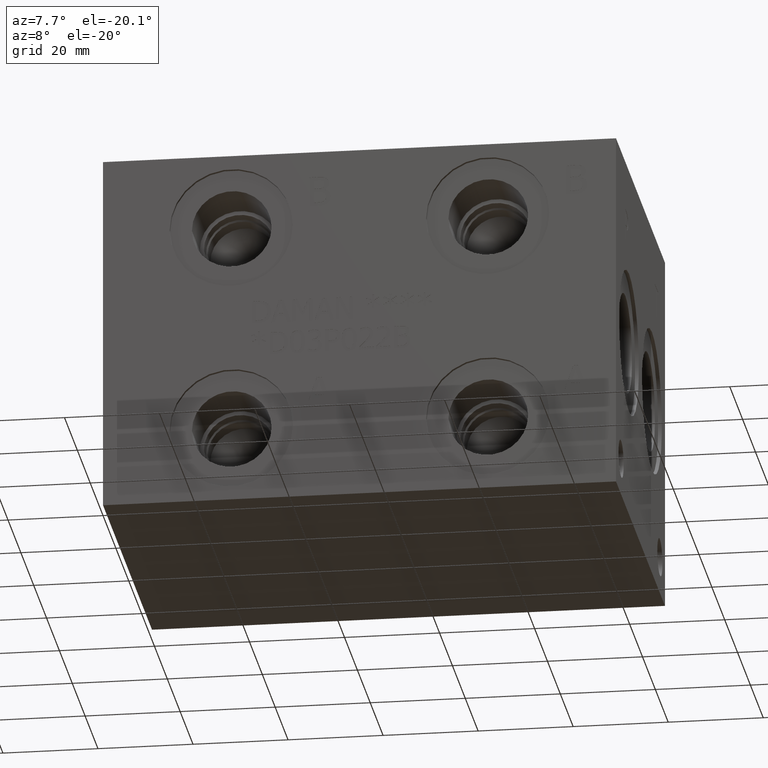
[diagram: clean part render]
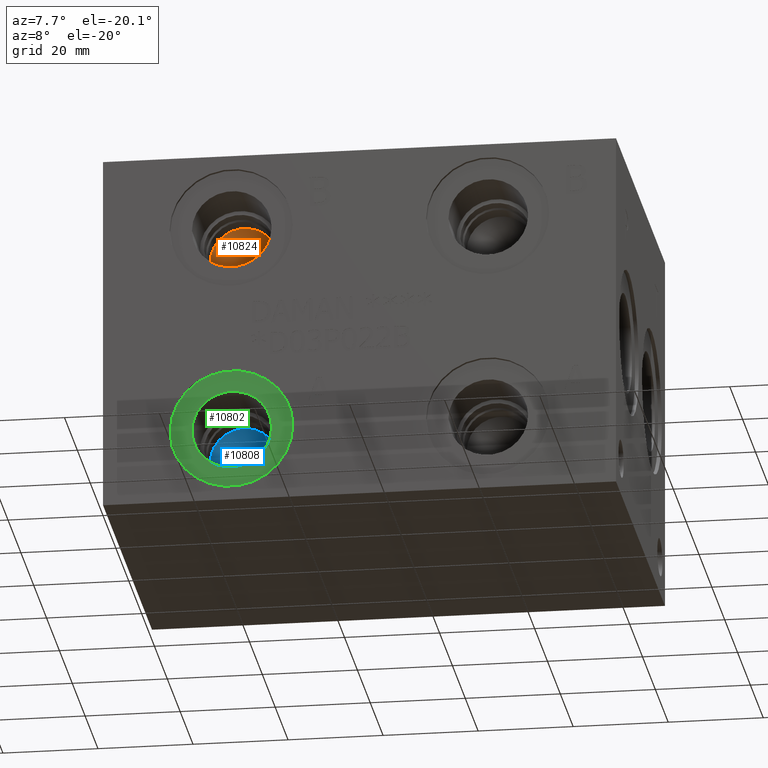
[diagram: same view with three faces highlighted in distinct colors, each labeled with its STEP entity id]
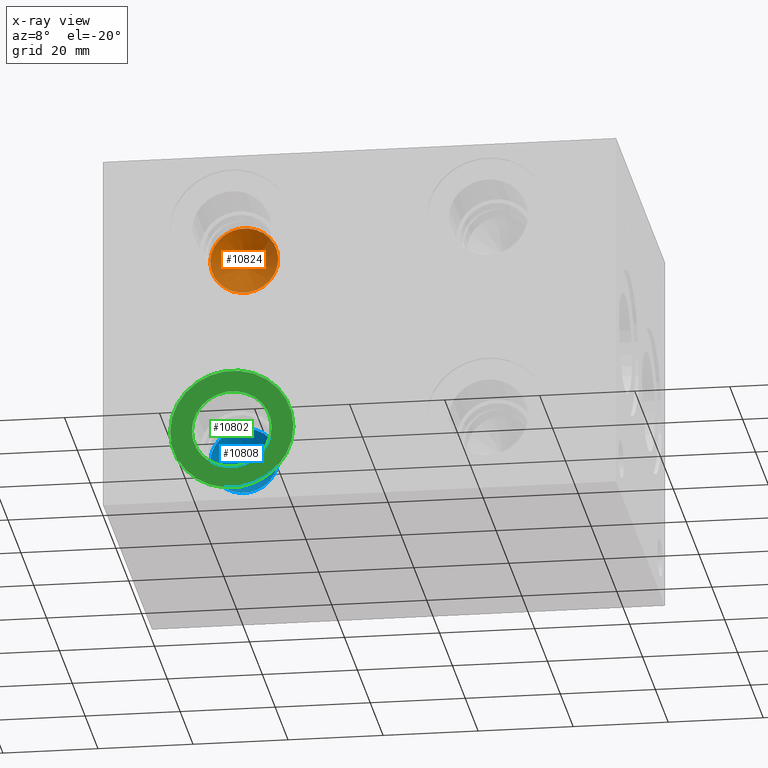
[diagram: x-ray of the same camera — body ghosted, the three highlighted faces saturated]
A machine part, auxiliary view with three faces highlighted in distinct colors.
The next image is the same camera in x-ray (body ghosted, the three faces saturated) — at least one of them is partly hidden behind the body in this view.
Their STEP definitions:

[orange] entity #10824 — the highlighted conical surface has half-angle 60 deg.
#33=CONICAL_SURFACE('',#11361,7.1501,1.04719754697282);
#197=CIRCLE('',#11360,7.1501);
#1320=FACE_OUTER_BOUND('',#1982,.T.);
#1982=EDGE_LOOP('',(#9299,#9300,#9301));
#3060=LINE('',#18378,#4100);
#4100=VECTOR('',#13391,7.1501);
#5057=VERTEX_POINT('',#18373);
#5058=VERTEX_POINT('',#18377);
#6495=EDGE_CURVE('',#5057,#5057,#197,.T.);
#6496=EDGE_CURVE('',#5057,#5058,#3060,.T.);
#9299=ORIENTED_EDGE('',*,*,#6495,.F.);
#9300=ORIENTED_EDGE('',*,*,#6496,.T.);
#9301=ORIENTED_EDGE('',*,*,#6496,.F.);
#10824=ADVANCED_FACE('',(#1320),#33,.F.);
#11360=AXIS2_PLACEMENT_3D('',#18375,#13387,#13388);
#11361=AXIS2_PLACEMENT_3D('',#18376,#13389,#13390);
#13387=DIRECTION('center_axis',(0.,1.,0.));
#13388=DIRECTION('ref_axis',(1.,0.,0.));
#13389=DIRECTION('center_axis',(0.,-1.,0.));
#13390=DIRECTION('ref_axis',(1.,0.,0.));
#13391=DIRECTION('',(0.866025401672549,0.5000000036579,-1.06057523613859E-16));
#18373=CARTESIAN_POINT('',(19.8247,20.2184,60.325));
#18375=CARTESIAN_POINT('Origin',(26.9748,20.2184,60.325));
#18376=CARTESIAN_POINT('Origin',(26.9748,20.2184,60.325));
#18377=CARTESIAN_POINT('',(26.9748,24.3465122,60.325));
#18378=CARTESIAN_POINT('',(19.8247,20.2184,60.325));

[blue] entity #10808 — the highlighted conical surface has half-angle 60 deg.
#29=CONICAL_SURFACE('',#11331,7.1501,1.04719754697282);
#183=CIRCLE('',#11330,7.1501);
#1304=FACE_OUTER_BOUND('',#1962,.T.);
#1962=EDGE_LOOP('',(#9245,#9246,#9247));
#3048=LINE('',#18320,#4088);
#4088=VECTOR('',#13319,7.1501);
#5041=VERTEX_POINT('',#18315);
#5042=VERTEX_POINT('',#18319);
#6469=EDGE_CURVE('',#5041,#5041,#183,.T.);
#6470=EDGE_CURVE('',#5041,#5042,#3048,.T.);
#9245=ORIENTED_EDGE('',*,*,#6469,.F.);
#9246=ORIENTED_EDGE('',*,*,#6470,.T.);
#9247=ORIENTED_EDGE('',*,*,#6470,.F.);
#10808=ADVANCED_FACE('',(#1304),#29,.F.);
#11330=AXIS2_PLACEMENT_3D('',#18317,#13315,#13316);
#11331=AXIS2_PLACEMENT_3D('',#18318,#13317,#13318);
#13315=DIRECTION('center_axis',(0.,1.,0.));
#13316=DIRECTION('ref_axis',(1.,0.,0.));
#13317=DIRECTION('center_axis',(0.,-1.,0.));
#13318=DIRECTION('ref_axis',(1.,0.,0.));
#13319=DIRECTION('',(0.866025401672549,0.5000000036579,-1.06057523613859E-16));
#18315=CARTESIAN_POINT('',(19.8247,20.2184,15.875));
#18317=CARTESIAN_POINT('Origin',(26.9748,20.2184,15.875));
#18318=CARTESIAN_POINT('Origin',(26.9748,20.2184,15.875));
#18319=CARTESIAN_POINT('',(26.9748,24.3465122,15.875));
#18320=CARTESIAN_POINT('',(19.8247,20.2184,15.875));

[green] entity #10802 — the highlighted planar face has unit normal (0, 1, 0).
#177=CIRCLE('',#11318,12.9667);
#178=CIRCLE('',#11320,8.382);
#319=FACE_BOUND('',#1955,.T.);
#1298=FACE_OUTER_BOUND('',#1954,.T.);
#1954=EDGE_LOOP('',(#9225));
#1955=EDGE_LOOP('',(#9226));
#5035=VERTEX_POINT('',#18293);
#5036=VERTEX_POINT('',#18297);
#6459=EDGE_CURVE('',#5035,#5035,#177,.T.);
#6460=EDGE_CURVE('',#5036,#5036,#178,.T.);
#9225=ORIENTED_EDGE('',*,*,#6459,.F.);
#9226=ORIENTED_EDGE('',*,*,#6460,.T.);
#9843=PLANE('',#11319);
#10802=ADVANCED_FACE('',(#1298,#319),#9843,.F.);
#11318=AXIS2_PLACEMENT_3D('',#18295,#13287,#13288);
#11319=AXIS2_PLACEMENT_3D('',#18296,#13289,#13290);
#11320=AXIS2_PLACEMENT_3D('',#18298,#13291,#13292);
#13287=DIRECTION('center_axis',(0.,1.,0.));
#13288=DIRECTION('ref_axis',(1.,0.,0.));
#13289=DIRECTION('center_axis',(0.,1.,0.));
#13290=DIRECTION('ref_axis',(0.,0.,1.));
#13291=DIRECTION('center_axis',(0.,1.,0.));
#13292=DIRECTION('ref_axis',(1.,0.,0.));
#18293=CARTESIAN_POINT('',(14.0081,0.7874,15.875));
#18295=CARTESIAN_POINT('Origin',(26.9748,0.7874,15.875));
#18296=CARTESIAN_POINT('Origin',(35.3568,0.7874,15.875));
#18297=CARTESIAN_POINT('',(18.5928,0.7874,15.875));
#18298=CARTESIAN_POINT('Origin',(26.9748,0.7874,15.875));